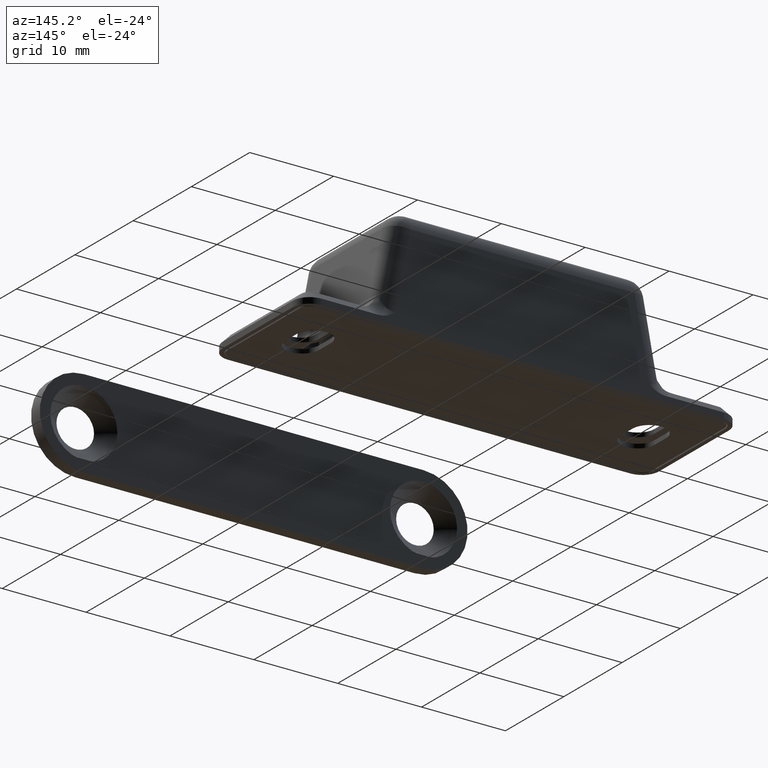
[diagram: clean part render]
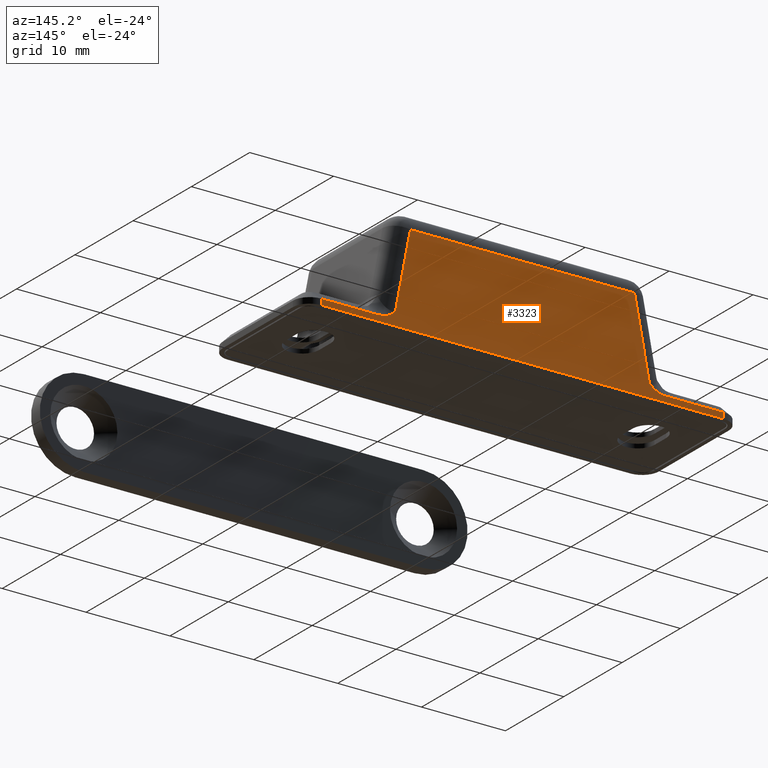
[diagram: same view with one face highlighted and labeled with its STEP entity id]
A machine part, auxiliary view. The second image highlights one B-rep face of the part: STEP entity #3323.
In plain terms, the highlighted planar face has unit normal (0, 1, 0).
Its self-contained STEP definition (entity closure, byte-faithful):
#180=PLANE('',#3608);
#340=FACE_OUTER_BOUND('',#540,.T.);
#540=EDGE_LOOP('',(#2725,#2726,#2727,#2728,#2729,#2730,#2731,#2732,#2733,
#2734));
#663=B_SPLINE_CURVE_WITH_KNOTS('',3,(#5588,#5589,#5590,#5591,#5592,#5593,
#5594,#5595,#5596,#5597),.UNSPECIFIED.,.F.,.F.,(4,2,2,2,4),(-0.000830784899256306,
0.,0.0834906359267163,0.140468548628077,0.152463409197911),
 .UNSPECIFIED.);
#664=B_SPLINE_CURVE_WITH_KNOTS('',3,(#5645,#5646,#5647,#5648,#5649,#5650,
#5651,#5652,#5653,#5654),.UNSPECIFIED.,.F.,.F.,(4,2,2,2,4),(0.,0.0195673459544561,
0.111768831054941,0.246701387480877,0.248044702377873),.UNSPECIFIED.);
#780=LINE('',#5385,#1076);
#796=LINE('',#5614,#1092);
#809=LINE('',#5815,#1105);
#810=LINE('',#5817,#1106);
#817=LINE('',#5835,#1113);
#821=LINE('',#5848,#1117);
#825=LINE('',#5858,#1121);
#831=LINE('',#5874,#1127);
#1076=VECTOR('',#4088,26.7026544567298);
#1092=VECTOR('',#4164,6.83764831845534);
#1105=VECTOR('',#4211,9.445106076515);
#1106=VECTOR('',#4214,9.44510607651506);
#1113=VECTOR('',#4235,6.83764831845534);
#1117=VECTOR('',#4251,0.700000000000003);
#1121=VECTOR('',#4261,48.);
#1127=VECTOR('',#4279,0.700000000000002);
#1502=VERTEX_POINT('',#5377);
#1504=VERTEX_POINT('',#5383);
#1526=VERTEX_POINT('',#5585);
#1527=VERTEX_POINT('',#5587);
#1533=VERTEX_POINT('',#5613);
#1535=VERTEX_POINT('',#5642);
#1536=VERTEX_POINT('',#5644);
#1554=VERTEX_POINT('',#5833);
#1557=VERTEX_POINT('',#5847);
#1560=VERTEX_POINT('',#5857);
#1879=EDGE_CURVE('',#1504,#1502,#780,.T.);
#1913=EDGE_CURVE('',#1526,#1527,#663,.T.);
#1922=EDGE_CURVE('',#1527,#1533,#796,.T.);
#1925=EDGE_CURVE('',#1535,#1536,#664,.T.);
#1953=EDGE_CURVE('',#1536,#1504,#809,.T.);
#1954=EDGE_CURVE('',#1502,#1526,#810,.T.);
#1963=EDGE_CURVE('',#1554,#1535,#817,.T.);
#1969=EDGE_CURVE('',#1533,#1557,#821,.T.);
#1974=EDGE_CURVE('',#1560,#1557,#825,.T.);
#1983=EDGE_CURVE('',#1560,#1554,#831,.T.);
#2725=ORIENTED_EDGE('',*,*,#1963,.F.);
#2726=ORIENTED_EDGE('',*,*,#1983,.F.);
#2727=ORIENTED_EDGE('',*,*,#1974,.T.);
#2728=ORIENTED_EDGE('',*,*,#1969,.F.);
#2729=ORIENTED_EDGE('',*,*,#1922,.F.);
#2730=ORIENTED_EDGE('',*,*,#1913,.F.);
#2731=ORIENTED_EDGE('',*,*,#1954,.F.);
#2732=ORIENTED_EDGE('',*,*,#1879,.F.);
#2733=ORIENTED_EDGE('',*,*,#1953,.F.);
#2734=ORIENTED_EDGE('',*,*,#1925,.F.);
#3323=ADVANCED_FACE('',(#340),#180,.T.);
#3608=AXIS2_PLACEMENT_3D('',#5875,#4280,#4281);
#4088=DIRECTION('',(-1.,0.,0.));
#4164=DIRECTION('',(-1.,0.,4.95950372771472E-15));
#4211=DIRECTION('',(-0.190808995376563,0.,0.98162718344766));
#4214=DIRECTION('',(-0.190808995376562,0.,-0.981627183447661));
#4235=DIRECTION('',(-1.,0.,1.31834909217733E-15));
#4251=DIRECTION('',(-2.61228946970624E-15,0.,-1.));
#4261=DIRECTION('',(-1.,0.,0.));
#4279=DIRECTION('',(2.61228946970625E-15,0.,1.));
#4280=DIRECTION('center_axis',(0.,1.,0.));
#4281=DIRECTION('ref_axis',(0.,0.,1.));
#5377=CARTESIAN_POINT('',(-13.3513272283649,8.,10.8));
#5383=CARTESIAN_POINT('',(13.3513272283649,8.,10.8));
#5385=CARTESIAN_POINT('',(-7.49999999999995,8.,10.8));
#5585=CARTESIAN_POINT('',(-15.1535384300498,8.,1.52842712474614));
#5587=CARTESIAN_POINT('',(-17.1627006096507,8.,0.699999999999962));
#5588=CARTESIAN_POINT('Ctrl Pts',(-15.1535384300498,8.,1.52842712474614));
#5589=CARTESIAN_POINT('Ctrl Pts',(-15.1555295956727,8.,1.52650249808558));
#5590=CARTESIAN_POINT('Ctrl Pts',(-15.1575229313619,8.,1.52458013210284));
#5591=CARTESIAN_POINT('Ctrl Pts',(-15.3600614449952,8.,1.32969738802097));
#5592=CARTESIAN_POINT('Ctrl Pts',(-15.6597999892155,8.,1.08548685796469));
#5593=CARTESIAN_POINT('Ctrl Pts',(-16.3581060624297,8.,0.796828115960715));
#5594=CARTESIAN_POINT('Ctrl Pts',(-16.6612287885539,8.,0.727340804395825));
#5595=CARTESIAN_POINT('Ctrl Pts',(-17.0325662623363,8.,0.702245836889653));
#5596=CARTESIAN_POINT('Ctrl Pts',(-17.0972780533087,8.,0.700044324227813));
#5597=CARTESIAN_POINT('Ctrl Pts',(-17.1620027541165,8.,0.699999999999962));
#5613=CARTESIAN_POINT('',(-24.,8.,0.700000000000003));
#5614=CARTESIAN_POINT('',(-6.50000000000002,8.,0.699999999999909));
#5642=CARTESIAN_POINT('',(17.1627006096507,8.00000000000001,0.700000000000012));
#5644=CARTESIAN_POINT('',(15.1535384300498,8.,1.5284271247462));
#5645=CARTESIAN_POINT('Ctrl Pts',(17.1620027541165,8.,0.70000000000001));
#5646=CARTESIAN_POINT('Ctrl Pts',(17.0967782828957,8.,0.700044666476452));
#5647=CARTESIAN_POINT('Ctrl Pts',(17.031567022339,8.,0.702279963302215));
#5648=CARTESIAN_POINT('Ctrl Pts',(16.6598602100967,8.,0.727592902120009));
#5649=CARTESIAN_POINT('Ctrl Pts',(16.356844261603,8.,0.797196785633201));
#5650=CARTESIAN_POINT('Ctrl Pts',(15.65931186397,8.,1.0859132012372));
#5651=CARTESIAN_POINT('Ctrl Pts',(15.3599643785039,8.,1.32979078548822));
#5652=CARTESIAN_POINT('Ctrl Pts',(15.1575229313618,8.,1.52458013210291));
#5653=CARTESIAN_POINT('Ctrl Pts',(15.1555295956727,8.,1.52650249808562));
#5654=CARTESIAN_POINT('Ctrl Pts',(15.1535384300498,8.,1.5284271247462));
#5815=CARTESIAN_POINT('',(13.3630556371955,8.,10.7396625672498));
#5817=CARTESIAN_POINT('',(-14.4418663529099,8.,5.1896625672498));
#5833=CARTESIAN_POINT('',(24.,8.,0.700000000000002));
#5835=CARTESIAN_POINT('',(4.28940535785719,8.,0.700000000000029));
#5847=CARTESIAN_POINT('',(-24.,8.,0.));
#5848=CARTESIAN_POINT('',(-24.,8.,3.20000000000003));
#5857=CARTESIAN_POINT('',(24.,8.,0.));
#5858=CARTESIAN_POINT('',(-26.,8.,0.));
#5874=CARTESIAN_POINT('',(24.,8.,4.04999999999997));
#5875=CARTESIAN_POINT('Origin',(0.,8.,6.4));